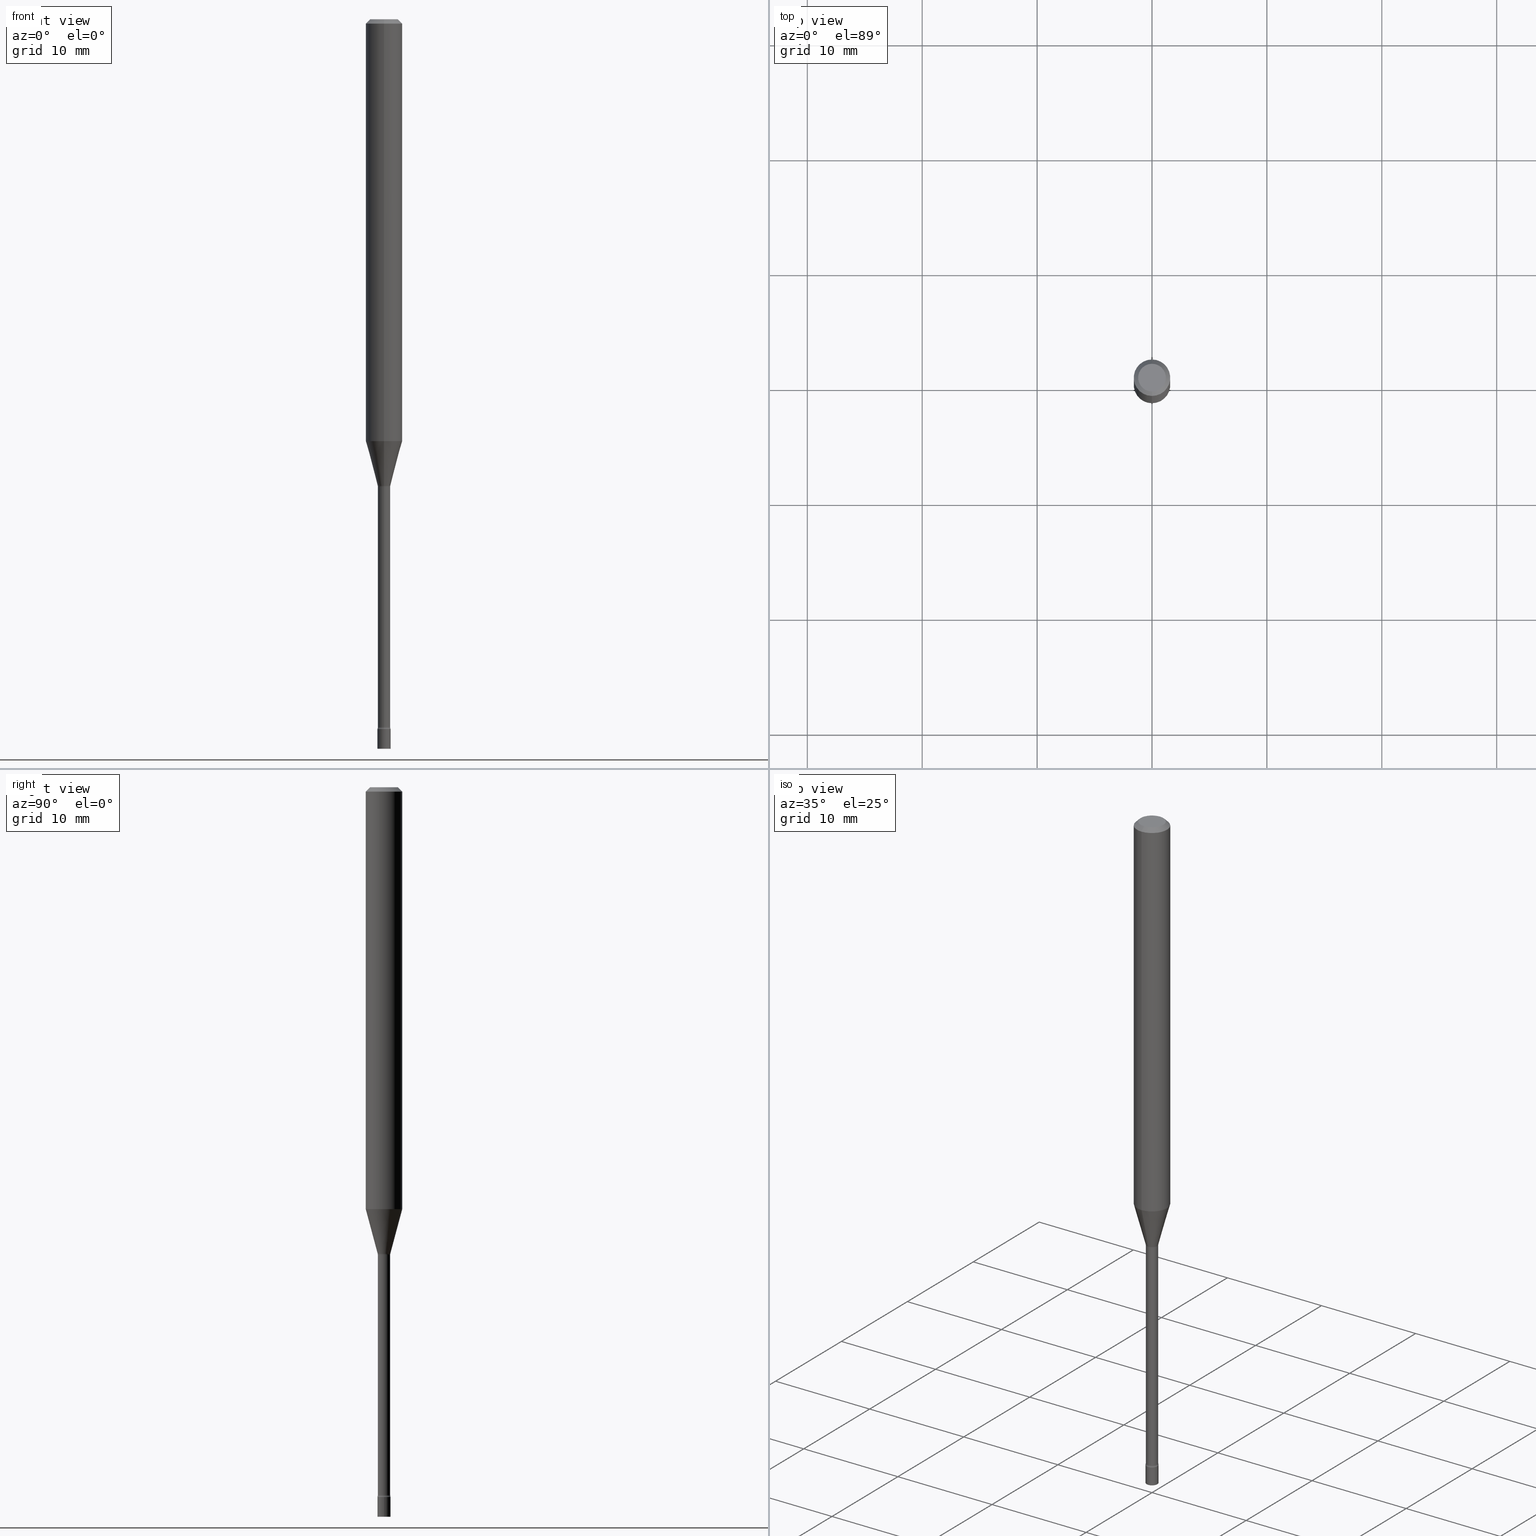
[diagram: canonical four-view strip — front | top / right | iso, engineering-drawing reading convention]
A machine part, canonical four-view strip (front | top / right | iso — engineering-drawing reading convention). The complete STEP part file that produces these views, byte-faithful:
ISO-10303-21;
HEADER;
FILE_DESCRIPTION (( 'STEP AP203' ),
    '1' );
FILE_NAME ('03651.STEP',
    '2024-03-08T22:21:41',
    ( '' ),
    ( '' ),
    'SwSTEP 2.0',
    'SolidWorks 2023',
    '' );
FILE_SCHEMA (( 'CONFIG_CONTROL_DESIGN' ));
ENDSEC;

DATA;
#1 = CARTESIAN_POINT ( 'NONE',  ( 5.947286004645587109E-29, -8.491417418443415626E-15, -2.432000000000000384 ) ) ;
#2 = PERSON_AND_ORGANIZATION ( #177, #191 ) ;
#3 = VERTEX_POINT ( 'NONE', #385 ) ;
#4 = ADVANCED_FACE ( 'NONE', ( #343 ), #347, .T. ) ;
#5 = CIRCLE ( 'NONE', #353, 0.02249999999999999917 ) ;
#6 = AXIS2_PLACEMENT_3D ( 'NONE', #356, #157, #319 ) ;
#7 = CARTESIAN_POINT ( 'NONE',  ( 0.02249999999999999917, -8.648399276314471045E-15, -2.432000000000000384 ) ) ;
#8 = ORIENTED_EDGE ( 'NONE', *, *, #418, .T. ) ;
#9 = FACE_OUTER_BOUND ( 'NONE', #26, .T. ) ;
#10 = VERTEX_POINT ( 'NONE', #389 ) ;
#11 = DIRECTION ( 'NONE',  ( -2.445430100594402543E-29, 3.491536767452062227E-15, 1.000000000000000000 ) ) ;
#12 = EDGE_CURVE ( 'NONE', #341, #251, #5, .T. ) ;
#13 = PERSON_AND_ORGANIZATION_ROLE ( 'creator' ) ;
#14 = ORIENTED_EDGE ( 'NONE', *, *, #401, .F. ) ;
#15 = DIRECTION ( 'NONE',  ( -2.445430100594402543E-29, 3.491536767452062227E-15, 1.000000000000000000 ) ) ;
#16 = AXIS2_PLACEMENT_3D ( 'NONE', #307, #70, #195 ) ;
#17 = ORIENTED_EDGE ( 'NONE', *, *, #284, .F. ) ;
#18 = ORIENTED_EDGE ( 'NONE', *, *, #401, .T. ) ;
#19 = CARTESIAN_POINT ( 'NONE',  ( -4.287811248607203282E-16, -0.06250000000000005551, -0.01499999999999981209 ) ) ;
#20 = ORIENTED_EDGE ( 'NONE', *, *, #69, .F. ) ;
#21 = LENGTH_MEASURE_WITH_UNIT ( LENGTH_MEASURE( 0.02539999999999999897 ), #424 );
#22 = VECTOR ( 'NONE', #478, 39.37007874015748143 ) ;
#23 = VERTEX_POINT ( 'NONE', #105 ) ;
#24 = CONICAL_SURFACE ( 'NONE', #6, 0.06250000000000000000, 0.7853981633974483900 ) ;
#25 = FACE_OUTER_BOUND ( 'NONE', #86, .T. ) ;
#26 = EDGE_LOOP ( 'NONE', ( #417, #8, #340, #109 ) ) ;
#27 = ADVANCED_FACE ( 'NONE', ( #25 ), #504, .T. ) ;
#28 = PERSON_AND_ORGANIZATION ( #177, #191 ) ;
#29 = DIRECTION ( 'NONE',  ( -6.982962677686265922E-15, -1.000000000000000000, 4.370956789862821150E-15 ) ) ;
#30 = AXIS2_PLACEMENT_3D ( 'NONE', #398, #516, #35 ) ;
#31 = AXIS2_PLACEMENT_3D ( 'NONE', #320, #323, #316 ) ;
#32 = DIRECTION ( 'NONE',  ( 2.445430100594402262E-29, -3.491536767452062227E-15, -1.000000000000000000 ) ) ;
#33 = CC_DESIGN_PERSON_AND_ORGANIZATION_ASSIGNMENT ( #446, #13, ( #201 ) ) ;
#34 = CARTESIAN_POINT ( 'NONE',  ( 1.539114621043998178E-16, 0.02166111260565839816, -1.598092501787273134 ) ) ;
#35 = DIRECTION ( 'NONE',  ( -6.982962677686266711E-15, -1.000000000000000000, 0.000000000000000000 ) ) ;
#36 = TOROIDAL_SURFACE ( 'NONE', #338, 0.03615000000000010566, 0.01499999999999991618 ) ;
#37 = LOCAL_TIME ( 17, 21, 41.00000000000000000, #170 ) ;
#38 = LINE ( 'NONE', #441, #429 ) ;
#39 = DATE_TIME_ROLE ( 'creation_date' ) ;
#40 = EDGE_CURVE ( 'NONE', #93, #493, #207, .T. ) ;
#41 = DIRECTION ( 'NONE',  ( -2.445430100594402543E-29, 3.491536767452062227E-15, 1.000000000000000000 ) ) ;
#42 = DATE_AND_TIME ( #53, #465 ) ;
#43 = ORIENTED_EDGE ( 'NONE', *, *, #498, .F. ) ;
#44 = AXIS2_PLACEMENT_3D ( 'NONE', #209, #202, #519 ) ;
#45 = AXIS2_PLACEMENT_3D ( 'NONE', #360, #440, #239 ) ;
#46 = FACE_OUTER_BOUND ( 'NONE', #500, .T. ) ;
#47 = PERSON_AND_ORGANIZATION_ROLE ( 'design_supplier' ) ;
#48 = EDGE_LOOP ( 'NONE', ( #217, #461, #337, #334 ) ) ;
#49 = ADVANCED_FACE ( 'NONE', ( #433 ), #71, .T. ) ;
#50 = CYLINDRICAL_SURFACE ( 'NONE', #439, 0.02115000000000009234 ) ;
#51 = ORIENTED_EDGE ( 'NONE', *, *, #426, .T. ) ;
#52 = FACE_OUTER_BOUND ( 'NONE', #468, .T. ) ;
#53 = CALENDAR_DATE ( 2024, 8, 3 ) ;
#54 = ORIENTED_EDGE ( 'NONE', *, *, #408, .F. ) ;
#55 = DIRECTION ( 'NONE',  ( -2.445430100594402543E-29, 3.491536767452062227E-15, 1.000000000000000000 ) ) ;
#56 = CIRCLE ( 'NONE', #485, 0.01499999999999991618 ) ;
#57 = VERTEX_POINT ( 'NONE', #510 ) ;
#58 = CC_DESIGN_SECURITY_CLASSIFICATION ( #369, ( #297 ) ) ;
#59 = DIMENSIONAL_EXPONENTS ( 1.000000000000000000, 0.000000000000000000, 0.000000000000000000, 0.000000000000000000, 0.000000000000000000, 0.000000000000000000, 0.000000000000000000 ) ;
#60 = DIRECTION ( 'NONE',  ( 1.000000000000000000, -7.105427357601001070E-15, 4.926316187346767004E-29 ) ) ;
#61 = VERTEX_POINT ( 'NONE', #153 ) ;
#62 = EDGE_CURVE ( 'NONE', #213, #497, #66, .T. ) ;
#63 = LINE ( 'NONE', #272, #168 ) ;
#64 = VERTEX_POINT ( 'NONE', #73 ) ;
#65 = DIRECTION ( 'NONE',  ( -4.851104656540964275E-15, -0.7071067811865500152, -0.7071067811865450192 ) ) ;
#66 = CIRCLE ( 'NONE', #130, 0.01500000000000002373 ) ;
#67 = ORIENTED_EDGE ( 'NONE', *, *, #117, .F. ) ;
#68 = CIRCLE ( 'NONE', #142, 0.02115000000000018948 ) ;
#69 = EDGE_CURVE ( 'NONE', #458, #497, #381, .T. ) ;
#70 = DIRECTION ( 'NONE',  ( -1.000000000000000000, 6.982962677686265922E-15, -4.883557194083112340E-29 ) ) ;
#71 = PLANE ( 'NONE',  #295 ) ;
#72 = PERSON_AND_ORGANIZATION_ROLE ( 'design_owner' ) ;
#73 = CARTESIAN_POINT ( 'NONE',  ( -4.364351673553912750E-16, -0.06250000000000005551, -0.01499999999999981209 ) ) ;
#74 = CARTESIAN_POINT ( 'NONE',  ( 5.932171463552648253E-29, -8.469568661610593182E-15, -2.425780876267512376 ) ) ;
#75 = CLOSED_SHELL ( 'NONE', ( #481, #49, #387, #27 ) ) ;
#76 = CIRCLE ( 'NONE', #81, 0.02166111260566397703 ) ;
#77 = EDGE_CURVE ( 'NONE', #213, #10, #397, .T. ) ;
#78 = CARTESIAN_POINT ( 'NONE',  ( 3.535308652014583271E-29, -5.047643823391220949E-15, -1.445679699107027538 ) ) ;
#79 = FACE_OUTER_BOUND ( 'NONE', #248, .T. ) ;
#80 = CARTESIAN_POINT ( 'NONE',  ( 0.000000000000000000, 0.000000000000000000, 0.000000000000000000 ) ) ;
#81 = AXIS2_PLACEMENT_3D ( 'NONE', #467, #233, #509 ) ;
#82 = EDGE_CURVE ( 'NONE', #10, #61, #438, .T. ) ;
#83 = LINE ( 'NONE', #450, #421 ) ;
#84 = APPROVAL ( #406, 'UNSPECIFIED' ) ;
#85 = DIRECTION ( 'NONE',  ( -2.445430100594402543E-29, 3.491536767452062227E-15, 1.000000000000000000 ) ) ;
#86 = EDGE_LOOP ( 'NONE', ( #491, #269 ) ) ;
#87 = CARTESIAN_POINT ( 'NONE',  ( 0.000000000000000000, 0.000000000000000000, 0.000000000000000000 ) ) ;
#88 = VERTEX_POINT ( 'NONE', #285 ) ;
#89 = EDGE_CURVE ( 'NONE', #88, #251, #38, .T. ) ;
#90 = CONICAL_SURFACE ( 'NONE', #45, 0.06250000000000000000, 0.7853981633974483900 ) ;
#91 = CC_DESIGN_APPROVAL ( #469, ( #297 ) ) ;
#92 = CARTESIAN_POINT ( 'NONE',  ( 0.000000000000000000, 0.000000000000000000, 0.000000000000000000 ) ) ;
#93 = VERTEX_POINT ( 'NONE', #163 ) ;
#94 = DIRECTION ( 'NONE',  ( 1.000000000000000000, -6.982962677686269077E-15, 0.000000000000000000 ) ) ;
#95 = PERSON_AND_ORGANIZATION ( #177, #191 ) ;
#96 = ORIENTED_EDGE ( 'NONE', *, *, #362, .T. ) ;
#97 = CARTESIAN_POINT ( 'NONE',  ( 2.568611989773362804E-16, 0.03614999999999163327, -2.425780876267512376 ) ) ;
#98 = ORIENTED_EDGE ( 'NONE', *, *, #12, .T. ) ;
#99 = AXIS2_PLACEMENT_3D ( 'NONE', #507, #55, #107 ) ;
#100 = AXIS2_PLACEMENT_3D ( 'NONE', #215, #15, #210 ) ;
#101 = APPROVAL ( #514, 'UNSPECIFIED' ) ;
#102 = ORIENTED_EDGE ( 'NONE', *, *, #296, .F. ) ;
#103 = LINE ( 'NONE', #266, #430 ) ;
#104 = ORIENTED_EDGE ( 'NONE', *, *, #284, .T. ) ;
#105 = CARTESIAN_POINT ( 'NONE',  ( -1.476896606330065208E-16, -0.02115000000000865840, -2.425780876267512376 ) ) ;
#106 = EDGE_CURVE ( 'NONE', #61, #64, #358, .T. ) ;
#107 = DIRECTION ( 'NONE',  ( -6.982962677686266711E-15, -1.000000000000000000, 0.000000000000000000 ) ) ;
#108 = VECTOR ( 'NONE', #518, 39.37007874015748143 ) ;
#109 = ORIENTED_EDGE ( 'NONE', *, *, #82, .F. ) ;
#110 = AXIS2_PLACEMENT_3D ( 'NONE', #92, #41, #456 ) ;
#111 = COORDINATED_UNIVERSAL_TIME_OFFSET ( 5, 0, .BEHIND. ) ;
#112 = DIRECTION ( 'NONE',  ( 1.000000000000000000, -7.105427357601001070E-15, 4.926316187346767004E-29 ) ) ;
#113 = CARTESIAN_POINT ( 'NONE',  ( 1.502797886132618208E-16, 0.02115000000000009234, -7.384600263161144504E-17 ) ) ;
#114 = DIRECTION ( 'NONE',  ( -2.445430100594402823E-29, 3.491536767452062227E-15, 1.000000000000000000 ) ) ;
#115 = DIRECTION ( 'NONE',  ( 1.839019923739599526E-15, 0.2588190451025248473, 0.9659258262890673130 ) ) ;
#116 = CARTESIAN_POINT ( 'NONE',  ( -4.364351673553916201E-16, -0.06250000000000000000, 2.182210479657538645E-16 ) ) ;
#117 = EDGE_CURVE ( 'NONE', #419, #294, #280, .T. ) ;
#118 = CARTESIAN_POINT ( 'NONE',  ( 3.535308652014583271E-29, -5.047643823391220949E-15, -1.445679699107027538 ) ) ;
#119 = AXIS2_PLACEMENT_3D ( 'NONE', #286, #32, #357 ) ;
#120 = CIRCLE ( 'NONE', #379, 0.02249999999999999917 ) ;
#121 = DIRECTION ( 'NONE',  ( -2.445468806185136597E-29, 3.491481338843145583E-15, 1.000000000000000000 ) ) ;
#122 = APPROVAL_ROLE ( '' ) ;
#123 = ORIENTED_EDGE ( 'NONE', *, *, #117, .T. ) ;
#124 = DIRECTION ( 'NONE',  ( -2.445468806185136597E-29, 3.491481338843145583E-15, 1.000000000000000000 ) ) ;
#125 = ADVANCED_FACE ( 'NONE', ( #79 ), #36, .F. ) ;
#126 = SECURITY_CLASSIFICATION_LEVEL ( 'unclassified' ) ;
#127 = EDGE_LOOP ( 'NONE', ( #134, #449, #173, #18 ) ) ;
#128 = CARTESIAN_POINT ( 'NONE',  ( 0.000000000000000000, 0.000000000000000000, 0.000000000000000000 ) ) ;
#129 = EDGE_LOOP ( 'NONE', ( #98, #104 ) ) ;
#130 = AXIS2_PLACEMENT_3D ( 'NONE', #315, #112, #435 ) ;
#131 = AXIS2_PLACEMENT_3D ( 'NONE', #301, #250, #377 ) ;
#132 = CARTESIAN_POINT ( 'NONE',  ( 3.840629472727447874E-16, 0.04749999999999999362, -1.947592745229183872E-16 ) ) ;
#133 = APPROVAL_ROLE ( '' ) ;
#134 = ORIENTED_EDGE ( 'NONE', *, *, #62, .F. ) ;
#135 = CARTESIAN_POINT ( 'NONE',  ( 3.917579371037814600E-29, -5.593265075727111603E-15, -1.601974787463811278 ) ) ;
#136 = EDGE_LOOP ( 'NONE', ( #463, #67, #273, #267 ) ) ;
#137 = MANIFOLD_SOLID_BREP ( 'Body-Move/Copy2[1]', #75 ) ;
#138 = EDGE_CURVE ( 'NONE', #23, #181, #241, .T. ) ;
#139 = MANIFOLD_SOLID_BREP ( 'Body-Move/Copy2[2]', #152 ) ;
#140 =( NAMED_UNIT ( * ) SI_UNIT ( $, .STERADIAN. ) SOLID_ANGLE_UNIT ( ) );
#141 = DIRECTION ( 'NONE',  ( -6.982962677686265133E-15, -1.000000000000000000, 0.000000000000000000 ) ) ;
#142 = AXIS2_PLACEMENT_3D ( 'NONE', #447, #367, #246 ) ;
#143 = DIRECTION ( 'NONE',  ( 7.105427357601000281E-15, 1.000000000000000000, 0.000000000000000000 ) ) ;
#144 = LOCAL_TIME ( 17, 21, 41.00000000000000000, #299 ) ;
#145 = CARTESIAN_POINT ( 'NONE',  ( 5.947286004645587109E-29, -8.491417418443415626E-15, -2.432000000000000384 ) ) ;
#146 = CARTESIAN_POINT ( 'NONE',  ( -1.512587408824719933E-16, -0.02166111260566955590, -1.598092501787273134 ) ) ;
#147 = DIRECTION ( 'NONE',  ( -6.982962677686265922E-15, -1.000000000000000000, 3.491536767452061833E-15 ) ) ;
#148 = ADVANCED_FACE ( 'NONE', ( #396 ), #322, .F. ) ;
#149 = DIRECTION ( 'NONE',  ( -6.982962677686265922E-15, -1.000000000000000000, 3.491536767452062621E-15 ) ) ;
#150 = DIRECTION ( 'NONE',  ( 1.000000000000000000, -6.982962677686269077E-15, 0.000000000000000000 ) ) ;
#151 = FACE_OUTER_BOUND ( 'NONE', #127, .T. ) ;
#152 = CLOSED_SHELL ( 'NONE', ( #240, #350, #205, #222, #4, #442, #249, #312, #190, #148, #476, #125, #228, #517 ) ) ;
#153 = CARTESIAN_POINT ( 'NONE',  ( -4.364351673553564172E-16, -0.06250000000000506539, -1.445679699107027094 ) ) ;
#154 = CIRCLE ( 'NONE', #131, 0.02114999999999999519 ) ;
#155 = CARTESIAN_POINT ( 'NONE',  ( 5.932077572270840864E-29, -8.469703119270102287E-15, -2.425780876267512376 ) ) ;
#156 = EDGE_CURVE ( 'NONE', #458, #23, #399, .T. ) ;
#157 = DIRECTION ( 'NONE',  ( 2.445430100594402543E-29, -3.491536767452062227E-15, -1.000000000000000000 ) ) ;
#158 = CARTESIAN_POINT ( 'NONE',  ( 4.364351673553919652E-16, 0.06249999999999995143, -0.01500000000000024751 ) ) ;
#159 = AXIS2_PLACEMENT_3D ( 'NONE', #118, #445, #29 ) ;
#160 = LOCAL_TIME ( 17, 21, 41.00000000000000000, #111 ) ;
#161 = EDGE_LOOP ( 'NONE', ( #96, #378, #196, #365 ) ) ;
#162 = EDGE_CURVE ( 'NONE', #419, #57, #393, .T. ) ;
#163 = CARTESIAN_POINT ( 'NONE',  ( 1.598721155460816758E-16, 0.02249999999999146086, -2.432000000000000384 ) ) ;
#164 = CARTESIAN_POINT ( 'NONE',  ( 7.070050963645403962E-46, -1.009447903717535599E-31, -2.891127806894546277E-17 ) ) ;
#165 = PERSON_AND_ORGANIZATION ( #177, #191 ) ;
#166 = ORIENTED_EDGE ( 'NONE', *, *, #182, .F. ) ;
#167 = TOROIDAL_SURFACE ( 'NONE', #31, 0.03615000000000010566, 0.01499999999999991618 ) ;
#168 = VECTOR ( 'NONE', #225, 39.37007874015748143 ) ;
#169 = DIRECTION ( 'NONE',  ( -6.982962677686265922E-15, -1.000000000000000000, 3.491536767452062621E-15 ) ) ;
#170 = COORDINATED_UNIVERSAL_TIME_OFFSET ( 5, 0, .BEHIND. ) ;
#171 = ORIENTED_EDGE ( 'NONE', *, *, #437, .F. ) ;
#172 = DIRECTION ( 'NONE',  ( -6.982962677686265922E-15, -1.000000000000000000, 3.491536767452062621E-15 ) ) ;
#173 = ORIENTED_EDGE ( 'NONE', *, *, #437, .T. ) ;
#174 = DIRECTION ( 'NONE',  ( -6.982962677686266711E-15, -1.000000000000000000, 0.000000000000000000 ) ) ;
#175 = CALENDAR_DATE ( 2024, 8, 3 ) ;
#176 = ORIENTED_EDGE ( 'NONE', *, *, #156, .T. ) ;
#177 = PERSON ( 'UNSPECIFIED', 'UNSPECIFIED', 'UNSPECIFIED', ('UNSPECIFIED'), ('UNSPECIFIED'), ('UNSPECIFIED') ) ;
#178 = AXIS2_PLACEMENT_3D ( 'NONE', #452, #495, #489 ) ;
#179 = CYLINDRICAL_SURFACE ( 'NONE', #110, 0.06250000000000000000 ) ;
#180 = SHAPE_DEFINITION_REPRESENTATION ( #317, #466 ) ;
#181 = VERTEX_POINT ( 'NONE', #287 ) ;
#182 = EDGE_CURVE ( 'NONE', #497, #181, #484, .T. ) ;
#183 = CC_DESIGN_DATE_AND_TIME_ASSIGNMENT ( #416, #336, ( #369 ) ) ;
#184 = DIRECTION ( 'NONE',  ( -2.445430100594402262E-29, 3.491536767452062227E-15, 1.000000000000000000 ) ) ;
#185 = ORIENTED_EDGE ( 'NONE', *, *, #318, .T. ) ;
#186 = CARTESIAN_POINT ( 'NONE',  ( 1.550759520797016510E-16, 0.02114999999999172056, -2.425780876267512376 ) ) ;
#187 = DIRECTION ( 'NONE',  ( -2.445430100594402543E-29, 3.491536767452062227E-15, 1.000000000000000000 ) ) ;
#188 = AXIS2_PLACEMENT_3D ( 'NONE', #145, #187, #141 ) ;
#189 = CONICAL_SURFACE ( 'NONE', #99, 0.02166111260566397703, 0.2617993877991501295 ) ;
#190 = ADVANCED_FACE ( 'NONE', ( #199 ), #24, .T. ) ;
#191 = ORGANIZATION ( 'UNSPECIFIED', 'UNSPECIFIED', '' ) ;
#192 = ORIENTED_EDGE ( 'NONE', *, *, #512, .T. ) ;
#193 = CARTESIAN_POINT ( 'NONE',  ( 0.000000000000000000, 0.000000000000000000, 0.000000000000000000 ) ) ;
#194 = CARTESIAN_POINT ( 'NONE',  ( 1.571166602480021278E-16, 0.02249999999999127004, -2.500000000000000000 ) ) ;
#195 = DIRECTION ( 'NONE',  ( -6.982962677686269077E-15, -1.000000000000000000, 0.000000000000000000 ) ) ;
#196 = ORIENTED_EDGE ( 'NONE', *, *, #12, .F. ) ;
#197 = APPLICATION_CONTEXT ( 'configuration controlled 3d designs of mechanical parts and assemblies' ) ;
#198 = AXIS2_PLACEMENT_3D ( 'NONE', #155, #482, #443 ) ;
#199 = FACE_OUTER_BOUND ( 'NONE', #136, .T. ) ;
#200 = AXIS2_PLACEMENT_3D ( 'NONE', #80, #520, #483 ) ;
#201 = PRODUCT_DEFINITION ( 'UNKNOWN', '', #297, #279 ) ;
#202 = DIRECTION ( 'NONE',  ( -2.445430100594402543E-29, 3.491536767452062227E-15, 1.000000000000000000 ) ) ;
#203 = ORIENTED_EDGE ( 'NONE', *, *, #459, .F. ) ;
#204 = DIRECTION ( 'NONE',  ( -2.445468806185136877E-29, 3.491481338843145188E-15, 1.000000000000000000 ) ) ;
#205 = ADVANCED_FACE ( 'NONE', ( #242 ), #167, .F. ) ;
#206 = FACE_OUTER_BOUND ( 'NONE', #292, .T. ) ;
#207 = CIRCLE ( 'NONE', #188, 0.02249999999999999917 ) ;
#208 = TOROIDAL_SURFACE ( 'NONE', #496, 0.03614999999999999464, 0.01500000000000002720 ) ;
#209 = CARTESIAN_POINT ( 'NONE',  ( 7.070050963645403962E-46, -1.009447903717535599E-31, -2.891127806894546277E-17 ) ) ;
#210 = DIRECTION ( 'NONE',  ( -6.982962677686265922E-15, -1.000000000000000000, 3.483106191921935554E-15 ) ) ;
#211 = DATE_AND_TIME ( #275, #160 ) ;
#212 = DIRECTION ( 'NONE',  ( -6.982962677686268288E-15, -1.000000000000000000, 0.000000000000000000 ) ) ;
#213 = VERTEX_POINT ( 'NONE', #282 ) ;
#214 = AXIS2_PLACEMENT_3D ( 'NONE', #373, #11, #174 ) ;
#215 = CARTESIAN_POINT ( 'NONE',  ( 3.668145150891610575E-31, -5.237305151178104483E-17, -0.01500000000000003067 ) ) ;
#216 = PERSON_AND_ORGANIZATION_ROLE ( 'classification_officer' ) ;
#217 = ORIENTED_EDGE ( 'NONE', *, *, #236, .T. ) ;
#218 = DIRECTION ( 'NONE',  ( -6.982962677686266711E-15, -1.000000000000000000, 3.491536767452062621E-15 ) ) ;
#219 = DATE_AND_TIME ( #448, #37 ) ;
#220 = ORIENTED_EDGE ( 'NONE', *, *, #40, .T. ) ;
#221 = DIRECTION ( 'NONE',  ( 1.000000000000000000, -6.982962677686266711E-15, 4.876176775795935793E-29 ) ) ;
#222 = ADVANCED_FACE ( 'NONE', ( #206 ), #90, .T. ) ;
#223 = ORIENTED_EDGE ( 'NONE', *, *, #418, .F. ) ;
#224 = TOROIDAL_SURFACE ( 'NONE', #400, 0.03614999999999999464, 0.01500000000000002720 ) ;
#225 = DIRECTION ( 'NONE',  ( -2.445430100594402823E-29, 3.491536767452062227E-15, 1.000000000000000000 ) ) ;
#226 = EDGE_LOOP ( 'NONE', ( #20, #176, #308, #166 ) ) ;
#227 = CARTESIAN_POINT ( 'NONE',  ( 5.947380136642253002E-29, -8.491282616066530991E-15, -2.432000000000000384 ) ) ;
#228 = ADVANCED_FACE ( 'NONE', ( #477 ), #480, .T. ) ;
#229 = ORIENTED_EDGE ( 'NONE', *, *, #162, .F. ) ;
#230 = AXIS2_PLACEMENT_3D ( 'NONE', #1, #492, #409 ) ;
#231 = CARTESIAN_POINT ( 'NONE',  ( 1.502797886133209360E-16, 0.02114999999999440244, -1.601974787463811278 ) ) ;
#232 = ORIENTED_EDGE ( 'NONE', *, *, #77, .T. ) ;
#233 = DIRECTION ( 'NONE',  ( -2.445430100594402543E-29, 3.491536767452062227E-15, 1.000000000000000000 ) ) ;
#234 = CARTESIAN_POINT ( 'NONE',  ( 5.947380136642253002E-29, -8.491282616066530991E-15, -2.432000000000000384 ) ) ;
#235 = APPLICATION_PROTOCOL_DEFINITION ( 'international standard', 'config_control_design', 1994, #197 ) ;
#236 = EDGE_CURVE ( 'NONE', #61, #10, #386, .T. ) ;
#237 = AXIS2_PLACEMENT_3D ( 'NONE', #97, #60, #143 ) ;
#238 = CARTESIAN_POINT ( 'NONE',  ( -1.476896606330651677E-16, -0.02115000000000009234, 7.384600263161144504E-17 ) ) ;
#239 = DIRECTION ( 'NONE',  ( 6.982962677686265922E-15, 1.000000000000000000, -3.483106191921935554E-15 ) ) ;
#240 = ADVANCED_FACE ( 'NONE', ( #325 ), #224, .F. ) ;
#241 = LINE ( 'NONE', #238, #108 ) ;
#242 = FACE_OUTER_BOUND ( 'NONE', #257, .T. ) ;
#243 = AXIS2_PLACEMENT_3D ( 'NONE', #87, #255, #221 ) ;
#244 = CC_DESIGN_APPROVAL ( #84, ( #369 ) ) ;
#245 = CARTESIAN_POINT ( 'NONE',  ( -2.524341007982999150E-16, -0.03615000000000857111, -2.425780876267512376 ) ) ;
#246 = DIRECTION ( 'NONE',  ( -6.982962677686265133E-15, -1.000000000000000000, 0.000000000000000000 ) ) ;
#247 = PERSON_AND_ORGANIZATION ( #177, #191 ) ;
#248 = EDGE_LOOP ( 'NONE', ( #372, #506, #309, #414 ) ) ;
#249 = ADVANCED_FACE ( 'NONE', ( #9 ), #511, .T. ) ;
#250 = DIRECTION ( 'NONE',  ( -2.445430100594402543E-29, 3.491536767452062227E-15, 1.000000000000000000 ) ) ;
#251 = VERTEX_POINT ( 'NONE', #403 ) ;
#252 = VECTOR ( 'NONE', #115, 39.37007874015747433 ) ;
#253 = AXIS2_PLACEMENT_3D ( 'NONE', #501, #472, #432 ) ;
#254 = APPROVAL_PERSON_ORGANIZATION ( #392, #101, #314 ) ;
#255 = DIRECTION ( 'NONE',  ( -2.445468806185136597E-29, 3.491481338843145583E-15, 1.000000000000000000 ) ) ;
#256 = COORDINATED_UNIVERSAL_TIME_OFFSET ( 5, 0, .BEHIND. ) ;
#257 = EDGE_LOOP ( 'NONE', ( #410, #51, #220, #300 ) ) ;
#258 = EDGE_CURVE ( 'NONE', #57, #64, #328, .T. ) ;
#259 = DIRECTION ( 'NONE',  ( -2.445468806185136877E-29, 3.491481338843145188E-15, 1.000000000000000000 ) ) ;
#260 = COORDINATED_UNIVERSAL_TIME_OFFSET ( 5, 0, .BEHIND. ) ;
#261 = ORIENTED_EDGE ( 'NONE', *, *, #182, .T. ) ;
#262 = PLANE ( 'NONE',  #326 ) ;
#263 = ORIENTED_EDGE ( 'NONE', *, *, #382, .T. ) ;
#264 = CIRCLE ( 'NONE', #16, 0.01500000000000002373 ) ;
#265 = ORIENTED_EDGE ( 'NONE', *, *, #69, .T. ) ;
#266 = CARTESIAN_POINT ( 'NONE',  ( -1.512587408824719933E-16, -0.02166111260566955590, -1.598092501787273134 ) ) ;
#267 = ORIENTED_EDGE ( 'NONE', *, *, #258, .T. ) ;
#268 = DIRECTION ( 'NONE',  ( -6.982962677686265922E-15, -1.000000000000000000, 3.491536767452062227E-15 ) ) ;
#269 = ORIENTED_EDGE ( 'NONE', *, *, #382, .F. ) ;
#270 = VECTOR ( 'NONE', #278, 39.37007874015748143 ) ;
#271 = CIRCLE ( 'NONE', #237, 0.01499999999999991618 ) ;
#272 = CARTESIAN_POINT ( 'NONE',  ( 4.440892098500625669E-16, 0.06250000000000000000, -2.182210479657538645E-16 ) ) ;
#273 = ORIENTED_EDGE ( 'NONE', *, *, #162, .T. ) ;
#274 = EDGE_CURVE ( 'NONE', #64, #57, #505, .T. ) ;
#275 = CALENDAR_DATE ( 2024, 8, 3 ) ;
#276 = CC_DESIGN_PERSON_AND_ORGANIZATION_ASSIGNMENT ( #165, #216, ( #369 ) ) ;
#277 = ORIENTED_EDGE ( 'NONE', *, *, #106, .T. ) ;
#278 = DIRECTION ( 'NONE',  ( -2.445430100594402823E-29, 3.491536767452062227E-15, 1.000000000000000000 ) ) ;
#279 = DESIGN_CONTEXT ( 'detailed design', #197, 'design' ) ;
#280 = CIRCLE ( 'NONE', #44, 0.04749999999999999362 ) ;
#281 = CIRCLE ( 'NONE', #394, 0.04749999999999999362 ) ;
#282 = CARTESIAN_POINT ( 'NONE',  ( 2.990003359772489910E-16, 0.02166111260565839816, -1.598092501787273134 ) ) ;
#283 =( GEOMETRIC_REPRESENTATION_CONTEXT ( 3 ) GLOBAL_UNCERTAINTY_ASSIGNED_CONTEXT ( ( #304 ) ) GLOBAL_UNIT_ASSIGNED_CONTEXT ( ( #380, #470, #140 ) ) REPRESENTATION_CONTEXT ( 'NONE', 'WORKASPACE' ) );
#284 = EDGE_CURVE ( 'NONE', #251, #341, #120, .T. ) ;
#285 = CARTESIAN_POINT ( 'NONE',  ( -0.02249999999999999917, -8.450120866041175677E-15, -2.500000000000000000 ) ) ;
#286 = CARTESIAN_POINT ( 'NONE',  ( 3.316907271900976096E-16, 0.04749999999999999362, -1.803036354884456898E-16 ) ) ;
#287 = CARTESIAN_POINT ( 'NONE',  ( -1.476896606330253056E-16, -0.02115000000000558794, -1.601974787463811278 ) ) ;
#288 = CC_DESIGN_PERSON_AND_ORGANIZATION_ASSIGNMENT ( #28, #72, ( #513 ) ) ;
#289 = CARTESIAN_POINT ( 'NONE',  ( -3.773273898774340269E-16, -0.04749999999999999362, 1.369367183850274987E-16 ) ) ;
#290 = ORIENTED_EDGE ( 'NONE', *, *, #138, .F. ) ;
#291 = DIRECTION ( 'NONE',  ( -2.445468806185136597E-29, 3.491481338843145583E-15, 1.000000000000000000 ) ) ;
#292 = EDGE_LOOP ( 'NONE', ( #54, #454, #305, #229 ) ) ;
#293 = DIRECTION ( 'NONE',  ( 1.000000000000000000, -6.982962677686269077E-15, 0.000000000000000000 ) ) ;
#294 = VERTEX_POINT ( 'NONE', #289 ) ;
#295 = AXIS2_PLACEMENT_3D ( 'NONE', #234, #391, #352 ) ;
#296 = EDGE_CURVE ( 'NONE', #493, #93, #453, .T. ) ;
#297 = PRODUCT_DEFINITION_FORMATION_WITH_SPECIFIED_SOURCE ( 'ANY', '', #513, .NOT_KNOWN. ) ;
#298 = CARTESIAN_POINT ( 'NONE',  ( 3.668145150891610575E-31, -5.237305151178104483E-17, -0.01500000000000003067 ) ) ;
#299 = COORDINATED_UNIVERSAL_TIME_OFFSET ( 5, 0, .BEHIND. ) ;
#300 = ORIENTED_EDGE ( 'NONE', *, *, #332, .F. ) ;
#301 = CARTESIAN_POINT ( 'NONE',  ( 3.917517365657324396E-29, -5.593353870961100159E-15, -1.601974787463811278 ) ) ;
#302 = EDGE_LOOP ( 'NONE', ( #43, #451, #277, #502 ) ) ;
#303 = CARTESIAN_POINT ( 'NONE',  ( 1.571166602480004515E-16, 0.02249999999999150943, -2.432000000000000384 ) ) ;
#304 = UNCERTAINTY_MEASURE_WITH_UNIT (LENGTH_MEASURE( 1.000000000000000082E-05 ), #380, 'distance_accuracy_value', 'NONE');
#305 = ORIENTED_EDGE ( 'NONE', *, *, #274, .T. ) ;
#306 = VECTOR ( 'NONE', #65, 39.37007874015748143 ) ;
#307 = CARTESIAN_POINT ( 'NONE',  ( -2.524341007983192914E-16, -0.03615000000000558739, -1.601974787463811278 ) ) ;
#308 = ORIENTED_EDGE ( 'NONE', *, *, #138, .T. ) ;
#309 = ORIENTED_EDGE ( 'NONE', *, *, #332, .T. ) ;
#310 = FACE_OUTER_BOUND ( 'NONE', #407, .T. ) ;
#311 = DIRECTION ( 'NONE',  ( 2.438088387897960049E-29, -3.491481338843145188E-15, -1.000000000000000000 ) ) ;
#312 = ADVANCED_FACE ( 'NONE', ( #486 ), #179, .T. ) ;
#313 = CIRCLE ( 'NONE', #214, 0.02166111260566397703 ) ;
#314 = APPROVAL_ROLE ( '' ) ;
#315 = CARTESIAN_POINT ( 'NONE',  ( 2.568611989773153756E-16, 0.03614999999999440883, -1.601974787463811278 ) ) ;
#316 = DIRECTION ( 'NONE',  ( -6.982962677686265922E-15, -1.000000000000000000, 3.491536767452062227E-15 ) ) ;
#317 = PRODUCT_DEFINITION_SHAPE ( 'NONE', 'NONE',  #201 ) ;
#318 = EDGE_CURVE ( 'NONE', #23, #458, #68, .T. ) ;
#319 = DIRECTION ( 'NONE',  ( 6.982962677686265922E-15, 1.000000000000000000, -3.483106191921935554E-15 ) ) ;
#320 = CARTESIAN_POINT ( 'NONE',  ( 5.932171463552648253E-29, -8.469568661610593182E-15, -2.425780876267512376 ) ) ;
#321 = APPROVAL_PERSON_ORGANIZATION ( #247, #469, #122 ) ;
#322 = PLANE ( 'NONE',  #119 ) ;
#323 = DIRECTION ( 'NONE',  ( -2.445430100594402543E-29, 3.491536767452062227E-15, 1.000000000000000000 ) ) ;
#324 = EDGE_CURVE ( 'NONE', #3, #341, #83, .T. ) ;
#325 = FACE_OUTER_BOUND ( 'NONE', #368, .T. ) ;
#326 = AXIS2_PLACEMENT_3D ( 'NONE', #303, #184, #268 ) ;
#327 = ORIENTED_EDGE ( 'NONE', *, *, #89, .F. ) ;
#328 = CIRCLE ( 'NONE', #100, 0.06250000000000000000 ) ;
#329 = CARTESIAN_POINT ( 'NONE',  ( 6.113672015462842613E-29, -8.728703347107864943E-15, -2.500000000000000000 ) ) ;
#330 = ORIENTED_EDGE ( 'NONE', *, *, #324, .T. ) ;
#331 = DIRECTION ( 'NONE',  ( -2.445430100594402543E-29, 3.491536767452062227E-15, 1.000000000000000000 ) ) ;
#332 = EDGE_CURVE ( 'NONE', #23, #493, #56, .T. ) ;
#333 = APPROVAL_DATE_TIME ( #42, #84 ) ;
#334 = ORIENTED_EDGE ( 'NONE', *, *, #106, .F. ) ;
#335 = DIRECTION ( 'NONE',  ( 1.000000000000000000, -6.982962677686269077E-15, 0.000000000000000000 ) ) ;
#336 = DATE_TIME_ROLE ( 'classification_date' ) ;
#337 = ORIENTED_EDGE ( 'NONE', *, *, #274, .F. ) ;
#338 = AXIS2_PLACEMENT_3D ( 'NONE', #74, #515, #361 ) ;
#339 = CARTESIAN_POINT ( 'NONE',  ( 5.947380136642253002E-29, -8.491282616066530991E-15, -2.432000000000000384 ) ) ;
#340 = ORIENTED_EDGE ( 'NONE', *, *, #459, .T. ) ;
#341 = VERTEX_POINT ( 'NONE', #7 ) ;
#342 = CC_DESIGN_DATE_AND_TIME_ASSIGNMENT ( #219, #39, ( #201 ) ) ;
#343 = FACE_OUTER_BOUND ( 'NONE', #48, .T. ) ;
#344 = APPLICATION_CONTEXT ( 'configuration controlled 3d designs of mechanical parts and assemblies' ) ;
#345 = AXIS2_PLACEMENT_3D ( 'NONE', #298, #331, #363 ) ;
#346 = DIRECTION ( 'NONE',  ( -1.807323732225328562E-15, -0.2588190451025179639, 0.9659258262890689783 ) ) ;
#347 = CYLINDRICAL_SURFACE ( 'NONE', #366, 0.06250000000000000000 ) ;
#348 = DIRECTION ( 'NONE',  ( 0.000000000000000000, 0.000000000000000000, 1.000000000000000000 ) ) ;
#349 = ORIENTED_EDGE ( 'NONE', *, *, #236, .F. ) ;
#350 = ADVANCED_FACE ( 'NONE', ( #46 ), #50, .T. ) ;
#351 = CYLINDRICAL_SURFACE ( 'NONE', #253, 0.02249999999999999917 ) ;
#352 = DIRECTION ( 'NONE',  ( 1.000000000000000000, -6.982962677686265922E-15, 4.876176775795935793E-29 ) ) ;
#353 = AXIS2_PLACEMENT_3D ( 'NONE', #227, #384, #150 ) ;
#354 = CIRCLE ( 'NONE', #474, 0.02249999999999999917 ) ;
#355 = DIRECTION ( 'NONE',  ( 1.000000000000000000, 0.000000000000000000, 0.000000000000000000 ) ) ;
#356 = CARTESIAN_POINT ( 'NONE',  ( 3.668145150891610575E-31, -5.237305151178104483E-17, -0.01500000000000003067 ) ) ;
#357 = DIRECTION ( 'NONE',  ( 6.982962677686265922E-15, 1.000000000000000000, -3.491536767452062227E-15 ) ) ;
#358 = LINE ( 'NONE', #116, #270 ) ;
#359 = AXIS2_PLACEMENT_3D ( 'NONE', #329, #124, #335 ) ;
#360 = CARTESIAN_POINT ( 'NONE',  ( 3.668145150891610575E-31, -5.237305151178104483E-17, -0.01500000000000003067 ) ) ;
#361 = DIRECTION ( 'NONE',  ( -6.982962677686265922E-15, -1.000000000000000000, 3.491536767452062227E-15 ) ) ;
#362 = EDGE_CURVE ( 'NONE', #3, #88, #464, .T. ) ;
#363 = DIRECTION ( 'NONE',  ( -6.982962677686265922E-15, -1.000000000000000000, 3.483106191921935554E-15 ) ) ;
#364 = CALENDAR_DATE ( 2024, 8, 3 ) ;
#365 = ORIENTED_EDGE ( 'NONE', *, *, #324, .F. ) ;
#366 = AXIS2_PLACEMENT_3D ( 'NONE', #425, #508, #147 ) ;
#367 = DIRECTION ( 'NONE',  ( -2.445430100594402543E-29, 3.491536767452062227E-15, 1.000000000000000000 ) ) ;
#368 = EDGE_LOOP ( 'NONE', ( #223, #488, #261, #171 ) ) ;
#369 = SECURITY_CLASSIFICATION ( '', '', #126 ) ;
#370 = CC_DESIGN_PERSON_AND_ORGANIZATION_ASSIGNMENT ( #2, #457, ( #297 ) ) ;
#371 = CYLINDRICAL_SURFACE ( 'NONE', #243, 0.02249999999999999917 ) ;
#372 = ORIENTED_EDGE ( 'NONE', *, *, #426, .F. ) ;
#373 = CARTESIAN_POINT ( 'NONE',  ( 3.908023507404811827E-29, -5.579798727779714596E-15, -1.598092501787273134 ) ) ;
#374 = CC_DESIGN_PERSON_AND_ORGANIZATION_ASSIGNMENT ( #413, #47, ( #297 ) ) ;
#375 = APPROVAL_STATUS ( 'not_yet_approved' ) ;
#376 = ORIENTED_EDGE ( 'NONE', *, *, #408, .T. ) ;
#377 = DIRECTION ( 'NONE',  ( -6.982962677686266711E-15, -1.000000000000000000, 0.000000000000000000 ) ) ;
#378 = ORIENTED_EDGE ( 'NONE', *, *, #89, .T. ) ;
#379 = AXIS2_PLACEMENT_3D ( 'NONE', #339, #121, #94 ) ;
#380 =( CONVERSION_BASED_UNIT ( 'INCH', #21 ) LENGTH_UNIT ( ) NAMED_UNIT ( #59 ) );
#381 = LINE ( 'NONE', #113, #494 ) ;
#382 = EDGE_CURVE ( 'NONE', #88, #3, #354, .T. ) ;
#383 = DIRECTION ( 'NONE',  ( -2.445430100594402543E-29, 3.491536767452062227E-15, 1.000000000000000000 ) ) ;
#384 = DIRECTION ( 'NONE',  ( -2.445468806185136597E-29, 3.491481338843145583E-15, 1.000000000000000000 ) ) ;
#385 = CARTESIAN_POINT ( 'NONE',  ( 0.02249999999999999917, -8.885820007355804997E-15, -2.500000000000000000 ) ) ;
#386 = CIRCLE ( 'NONE', #159, 0.06250000000000000000 ) ;
#387 = ADVANCED_FACE ( 'NONE', ( #52 ), #371, .T. ) ;
#388 = APPLICATION_PROTOCOL_DEFINITION ( 'international standard', 'config_control_design', 1994, #344 ) ;
#389 = CARTESIAN_POINT ( 'NONE',  ( 4.440892098500978191E-16, 0.06249999999999494849, -1.445679699107027760 ) ) ;
#390 = CARTESIAN_POINT ( 'NONE',  ( 3.917579371037814600E-29, -5.593265075727111603E-15, -1.601974787463811278 ) ) ;
#391 = DIRECTION ( 'NONE',  ( -2.438088387897960049E-29, 3.491481338843145188E-15, 1.000000000000000000 ) ) ;
#392 = PERSON_AND_ORGANIZATION ( #177, #191 ) ;
#393 = LINE ( 'NONE', #158, #22 ) ;
#394 = AXIS2_PLACEMENT_3D ( 'NONE', #164, #412, #218 ) ;
#395 = APPROVAL_PERSON_ORGANIZATION ( #95, #84, #133 ) ;
#396 = FACE_OUTER_BOUND ( 'NONE', #471, .T. ) ;
#397 = LINE ( 'NONE', #34, #252 ) ;
#398 = CARTESIAN_POINT ( 'NONE',  ( 3.917517365657324396E-29, -5.593353870961100159E-15, -1.601974787463811278 ) ) ;
#399 = CIRCLE ( 'NONE', #198, 0.02115000000000018948 ) ;
#400 = AXIS2_PLACEMENT_3D ( 'NONE', #135, #85, #172 ) ;
#401 = EDGE_CURVE ( 'NONE', #181, #497, #154, .T. ) ;
#402 = DIRECTION ( 'NONE',  ( -6.982962677686265922E-15, -1.000000000000000000, 4.370956789862821150E-15 ) ) ;
#403 = CARTESIAN_POINT ( 'NONE',  ( -0.02249999999999999917, -8.450120866041175677E-15, -2.432000000000000384 ) ) ;
#404 = APPROVAL_DATE_TIME ( #211, #101 ) ;
#405 = DIRECTION ( 'NONE',  ( -1.000000000000000000, 6.982962677686265922E-15, -4.883557194083112340E-29 ) ) ;
#406 = APPROVAL_STATUS ( 'not_yet_approved' ) ;
#407 = EDGE_LOOP ( 'NONE', ( #192, #232, #349, #203 ) ) ;
#408 = EDGE_CURVE ( 'NONE', #294, #419, #281, .T. ) ;
#409 = DIRECTION ( 'NONE',  ( -6.982962677686265133E-15, -1.000000000000000000, 0.000000000000000000 ) ) ;
#410 = ORIENTED_EDGE ( 'NONE', *, *, #156, .F. ) ;
#411 = AXIS2_PLACEMENT_3D ( 'NONE', #193, #348, #355 ) ;
#412 = DIRECTION ( 'NONE',  ( -2.445430100594402543E-29, 3.491536767452062227E-15, 1.000000000000000000 ) ) ;
#413 = PERSON_AND_ORGANIZATION ( #177, #191 ) ;
#414 = ORIENTED_EDGE ( 'NONE', *, *, #296, .T. ) ;
#415 = DIRECTION ( 'NONE',  ( -2.445430100594402543E-29, 3.491536767452062227E-15, 1.000000000000000000 ) ) ;
#416 = DATE_AND_TIME ( #175, #455 ) ;
#417 = ORIENTED_EDGE ( 'NONE', *, *, #77, .F. ) ;
#418 = EDGE_CURVE ( 'NONE', #213, #475, #313, .T. ) ;
#419 = VERTEX_POINT ( 'NONE', #132 ) ;
#420 = PRODUCT_RELATED_PRODUCT_CATEGORY ( 'detail', '', ( #513 ) ) ;
#421 = VECTOR ( 'NONE', #259, 39.37007874015748143 ) ;
#422 = FACE_OUTER_BOUND ( 'NONE', #428, .T. ) ;
#423 = ORIENTED_EDGE ( 'NONE', *, *, #40, .F. ) ;
#424 =( LENGTH_UNIT ( ) NAMED_UNIT ( * ) SI_UNIT ( $, .METRE. ) );
#425 = CARTESIAN_POINT ( 'NONE',  ( 0.000000000000000000, 0.000000000000000000, 0.000000000000000000 ) ) ;
#426 = EDGE_CURVE ( 'NONE', #458, #93, #271, .T. ) ;
#427 = CARTESIAN_POINT ( 'NONE',  ( -1.571166602478811610E-16, -0.02250000000000844380, -2.432000000000000384 ) ) ;
#428 = EDGE_LOOP ( 'NONE', ( #102, #423 ) ) ;
#429 = VECTOR ( 'NONE', #204, 39.37007874015748143 ) ;
#430 = VECTOR ( 'NONE', #346, 39.37007874015749564 ) ;
#431 = CC_DESIGN_APPROVAL ( #101, ( #201 ) ) ;
#432 = DIRECTION ( 'NONE',  ( 1.000000000000000000, -6.982962677686266711E-15, 4.876176775795935793E-29 ) ) ;
#433 = FACE_OUTER_BOUND ( 'NONE', #129, .T. ) ;
#434 = MECHANICAL_CONTEXT ( 'NONE', #344, 'mechanical' ) ;
#435 = DIRECTION ( 'NONE',  ( 7.105427357601003436E-15, 1.000000000000000000, 0.000000000000000000 ) ) ;
#436 = DIRECTION ( 'NONE',  ( -2.445430100594402543E-29, 3.491536767452062227E-15, 1.000000000000000000 ) ) ;
#437 = EDGE_CURVE ( 'NONE', #475, #181, #264, .T. ) ;
#438 = CIRCLE ( 'NONE', #479, 0.06250000000000000000 ) ;
#439 = AXIS2_PLACEMENT_3D ( 'NONE', #128, #415, #169 ) ;
#440 = DIRECTION ( 'NONE',  ( 2.445430100594402543E-29, -3.491536767452062227E-15, -1.000000000000000000 ) ) ;
#441 = CARTESIAN_POINT ( 'NONE',  ( -0.02249999999999999917, 1.598721155460225359E-16, -1.106760395307353780E-30 ) ) ;
#442 = ADVANCED_FACE ( 'NONE', ( #310 ), #189, .T. ) ;
#443 = DIRECTION ( 'NONE',  ( -6.982962677686265133E-15, -1.000000000000000000, 0.000000000000000000 ) ) ;
#444 = AXIS2_PLACEMENT_3D ( 'NONE', #194, #311, #473 ) ;
#445 = DIRECTION ( 'NONE',  ( -2.445430100594402543E-29, 3.491536767452062227E-15, 1.000000000000000000 ) ) ;
#446 = PERSON_AND_ORGANIZATION ( #177, #191 ) ;
#447 = CARTESIAN_POINT ( 'NONE',  ( 5.932077572270840864E-29, -8.469703119270102287E-15, -2.425780876267512376 ) ) ;
#448 = CALENDAR_DATE ( 2024, 8, 3 ) ;
#449 = ORIENTED_EDGE ( 'NONE', *, *, #512, .F. ) ;
#450 = CARTESIAN_POINT ( 'NONE',  ( 0.02249999999999999917, -1.571166602479409911E-16, 1.097139774554085483E-30 ) ) ;
#451 = ORIENTED_EDGE ( 'NONE', *, *, #82, .T. ) ;
#452 = CARTESIAN_POINT ( 'NONE',  ( 3.908023507404811827E-29, -5.579798727779714596E-15, -1.598092501787273134 ) ) ;
#453 = CIRCLE ( 'NONE', #230, 0.02249999999999999917 ) ;
#454 = ORIENTED_EDGE ( 'NONE', *, *, #503, .T. ) ;
#455 = LOCAL_TIME ( 17, 21, 41.00000000000000000, #256 ) ;
#456 = DIRECTION ( 'NONE',  ( -6.982962677686265922E-15, -1.000000000000000000, 3.491536767452061833E-15 ) ) ;
#457 = PERSON_AND_ORGANIZATION_ROLE ( 'creator' ) ;
#458 = VERTEX_POINT ( 'NONE', #186 ) ;
#459 = EDGE_CURVE ( 'NONE', #475, #61, #103, .T. ) ;
#460 = FACE_OUTER_BOUND ( 'NONE', #161, .T. ) ;
#461 = ORIENTED_EDGE ( 'NONE', *, *, #498, .T. ) ;
#462 = LINE ( 'NONE', #19, #306 ) ;
#463 = ORIENTED_EDGE ( 'NONE', *, *, #503, .F. ) ;
#464 = CIRCLE ( 'NONE', #359, 0.02249999999999999917 ) ;
#465 = LOCAL_TIME ( 17, 21, 41.00000000000000000, #260 ) ;
#466 = ADVANCED_BREP_SHAPE_REPRESENTATION ( '03651', ( #137, #139, #411 ), #283 ) ;
#467 = CARTESIAN_POINT ( 'NONE',  ( 3.908023507404811827E-29, -5.579798727779714596E-15, -1.598092501787273134 ) ) ;
#468 = EDGE_LOOP ( 'NONE', ( #327, #263, #330, #17 ) ) ;
#469 = APPROVAL ( #375, 'UNSPECIFIED' ) ;
#470 =( NAMED_UNIT ( * ) PLANE_ANGLE_UNIT ( ) SI_UNIT ( $, .RADIAN. ) );
#471 = EDGE_LOOP ( 'NONE', ( #123, #376 ) ) ;
#472 = DIRECTION ( 'NONE',  ( -2.445468806185136597E-29, 3.491481338843145583E-15, 1.000000000000000000 ) ) ;
#473 = DIRECTION ( 'NONE',  ( -1.000000000000000000, 6.982962677686265922E-15, -4.876176775795935793E-29 ) ) ;
#474 = AXIS2_PLACEMENT_3D ( 'NONE', #499, #291, #293 ) ;
#475 = VERTEX_POINT ( 'NONE', #146 ) ;
#476 = ADVANCED_FACE ( 'NONE', ( #422 ), #262, .F. ) ;
#477 = FACE_OUTER_BOUND ( 'NONE', #226, .T. ) ;
#478 = DIRECTION ( 'NONE',  ( 4.937700262164548042E-15, 0.7071067811865451302, -0.7071067811865499042 ) ) ;
#479 = AXIS2_PLACEMENT_3D ( 'NONE', #78, #436, #402 ) ;
#480 = CYLINDRICAL_SURFACE ( 'NONE', #200, 0.02115000000000009234 ) ;
#481 = ADVANCED_FACE ( 'NONE', ( #460 ), #351, .T. ) ;
#482 = DIRECTION ( 'NONE',  ( -2.445430100594402543E-29, 3.491536767452062227E-15, 1.000000000000000000 ) ) ;
#483 = DIRECTION ( 'NONE',  ( -6.982962677686265922E-15, -1.000000000000000000, 3.491536767452062621E-15 ) ) ;
#484 = CIRCLE ( 'NONE', #30, 0.02114999999999999519 ) ;
#485 = AXIS2_PLACEMENT_3D ( 'NONE', #245, #405, #212 ) ;
#486 = FACE_OUTER_BOUND ( 'NONE', #302, .T. ) ;
#487 = APPROVAL_DATE_TIME ( #490, #469 ) ;
#488 = ORIENTED_EDGE ( 'NONE', *, *, #62, .T. ) ;
#489 = DIRECTION ( 'NONE',  ( -6.982962677686266711E-15, -1.000000000000000000, 0.000000000000000000 ) ) ;
#490 = DATE_AND_TIME ( #364, #144 ) ;
#491 = ORIENTED_EDGE ( 'NONE', *, *, #362, .F. ) ;
#492 = DIRECTION ( 'NONE',  ( -2.445430100594402543E-29, 3.491536767452062227E-15, 1.000000000000000000 ) ) ;
#493 = VERTEX_POINT ( 'NONE', #427 ) ;
#494 = VECTOR ( 'NONE', #114, 39.37007874015748143 ) ;
#495 = DIRECTION ( 'NONE',  ( -2.445430100594402543E-29, 3.491536767452062227E-15, 1.000000000000000000 ) ) ;
#496 = AXIS2_PLACEMENT_3D ( 'NONE', #390, #383, #149 ) ;
#497 = VERTEX_POINT ( 'NONE', #231 ) ;
#498 = EDGE_CURVE ( 'NONE', #10, #57, #63, .T. ) ;
#499 = CARTESIAN_POINT ( 'NONE',  ( 6.113672015462842613E-29, -8.728703347107864943E-15, -2.500000000000000000 ) ) ;
#500 = EDGE_LOOP ( 'NONE', ( #185, #265, #14, #290 ) ) ;
#501 = CARTESIAN_POINT ( 'NONE',  ( 0.000000000000000000, 0.000000000000000000, 0.000000000000000000 ) ) ;
#502 = ORIENTED_EDGE ( 'NONE', *, *, #258, .F. ) ;
#503 = EDGE_CURVE ( 'NONE', #294, #64, #462, .T. ) ;
#504 = PLANE ( 'NONE',  #444 ) ;
#505 = CIRCLE ( 'NONE', #345, 0.06250000000000000000 ) ;
#506 = ORIENTED_EDGE ( 'NONE', *, *, #318, .F. ) ;
#507 = CARTESIAN_POINT ( 'NONE',  ( 3.908023507404811827E-29, -5.579798727779714596E-15, -1.598092501787273134 ) ) ;
#508 = DIRECTION ( 'NONE',  ( -2.445430100594402543E-29, 3.491536767452062227E-15, 1.000000000000000000 ) ) ;
#509 = DIRECTION ( 'NONE',  ( -6.982962677686266711E-15, -1.000000000000000000, 0.000000000000000000 ) ) ;
#510 = CARTESIAN_POINT ( 'NONE',  ( 4.440892098500982135E-16, 0.06249999999999995837, -0.01500000000000024751 ) ) ;
#511 = CONICAL_SURFACE ( 'NONE', #178, 0.02166111260566397703, 0.2617993877991501295 ) ;
#512 = EDGE_CURVE ( 'NONE', #475, #213, #76, .T. ) ;
#513 = PRODUCT ( '03651', '03651', '', ( #434 ) ) ;
#514 = APPROVAL_STATUS ( 'not_yet_approved' ) ;
#515 = DIRECTION ( 'NONE',  ( -2.445430100594402543E-29, 3.491536767452062227E-15, 1.000000000000000000 ) ) ;
#516 = DIRECTION ( 'NONE',  ( -2.445430100594402543E-29, 3.491536767452062227E-15, 1.000000000000000000 ) ) ;
#517 = ADVANCED_FACE ( 'NONE', ( #151 ), #208, .F. ) ;
#518 = DIRECTION ( 'NONE',  ( -2.445430100594402823E-29, 3.491536767452062227E-15, 1.000000000000000000 ) ) ;
#519 = DIRECTION ( 'NONE',  ( -6.982962677686266711E-15, -1.000000000000000000, 3.491536767452062621E-15 ) ) ;
#520 = DIRECTION ( 'NONE',  ( -2.445430100594402543E-29, 3.491536767452062227E-15, 1.000000000000000000 ) ) ;
ENDSEC;
END-ISO-10303-21;
